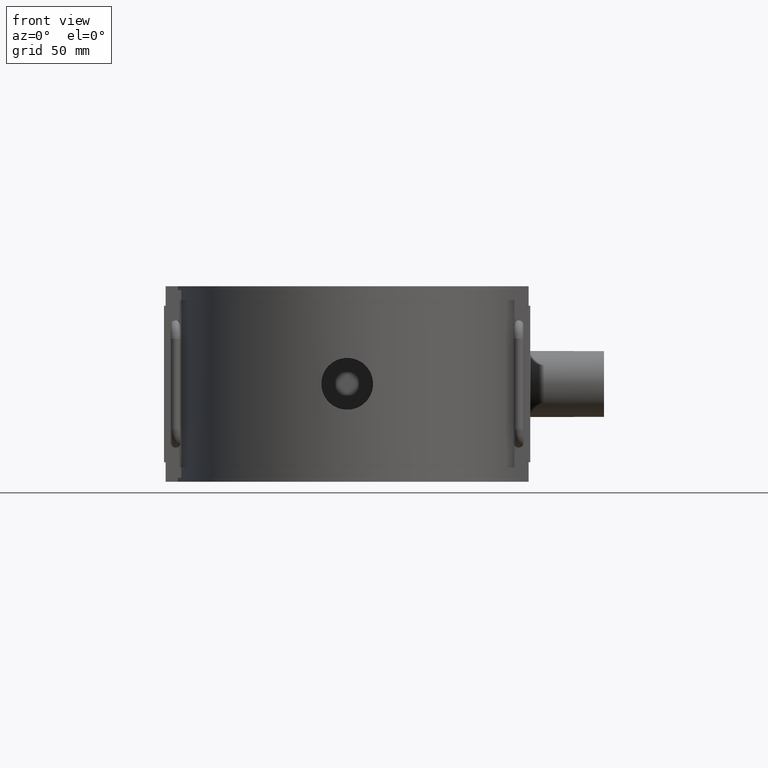
[diagram: clean part render]
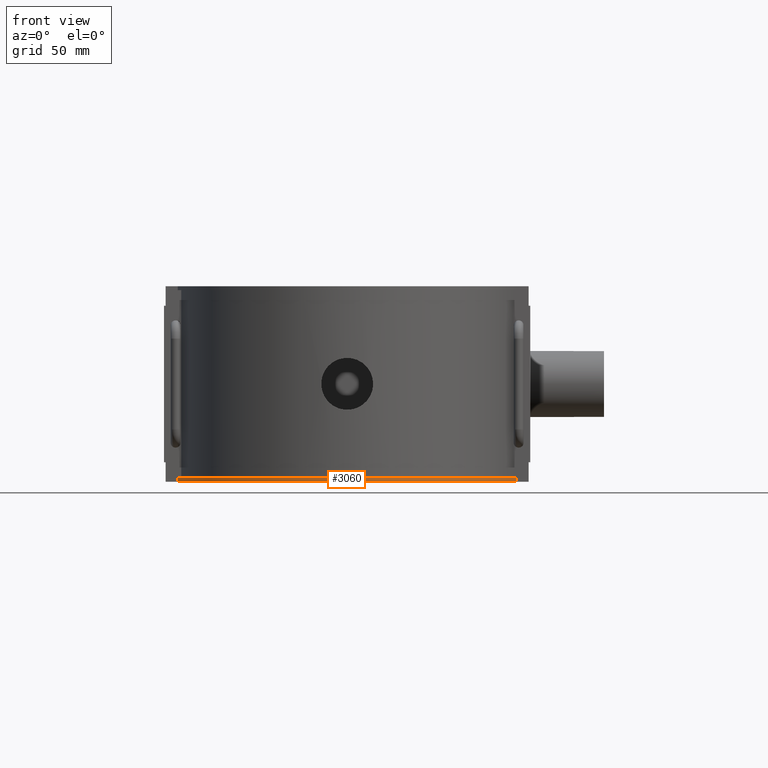
[diagram: same view with one face highlighted and labeled with its STEP entity id]
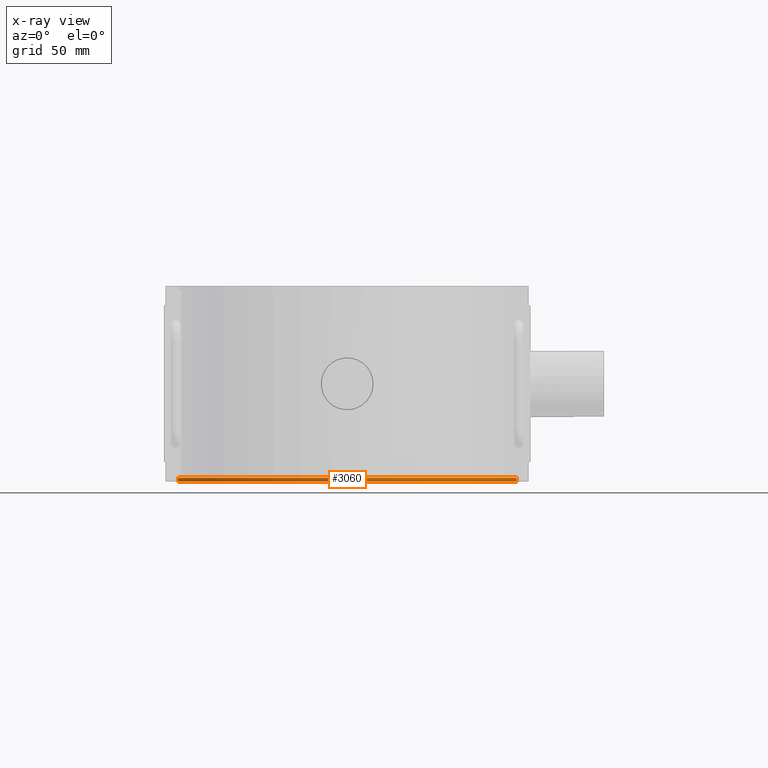
[diagram: x-ray of the same camera — body ghosted, the highlighted face saturated]
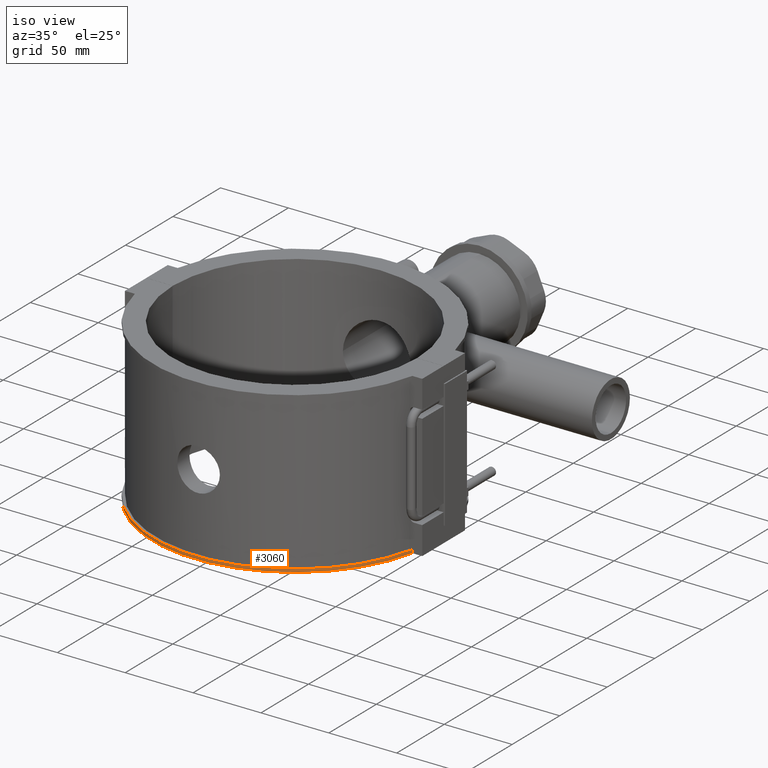
[diagram: same view with one face highlighted and labeled with its STEP entity id]
A machine part, front view. The second image highlights one B-rep face of the part: STEP entity #3060.
The next image is the same camera in x-ray: the body ghosted, the highlighted face saturated — about 0% of this face is hidden behind the body in this view.
A second angle (iso view) of the same face is appended — the face is thin or edge-on in the first view.
In plain terms, the highlighted cylindrical surface (partial cylindrical patch) has radius 104.652 mm, axis along (0, 0, -1).
Its self-contained STEP definition (entity closure, byte-faithful):
#100=LINE('',#5174,#379);
#101=LINE('',#5177,#380);
#379=VECTOR('',#3704,2.36);
#380=VECTOR('',#3707,2.36);
#743=CIRCLE('',#3277,104.652);
#744=CIRCLE('',#3278,104.652);
#913=FACE_OUTER_BOUND('',#1105,.T.);
#1105=EDGE_LOOP('',(#2280,#2281,#2282,#2283));
#1406=VERTEX_POINT('',#5170);
#1407=VERTEX_POINT('',#5171);
#1408=VERTEX_POINT('',#5173);
#1409=VERTEX_POINT('',#5175);
#1739=EDGE_CURVE('',#1406,#1407,#743,.T.);
#1740=EDGE_CURVE('',#1408,#1407,#100,.T.);
#1741=EDGE_CURVE('',#1408,#1409,#744,.T.);
#1742=EDGE_CURVE('',#1406,#1409,#101,.T.);
#2280=ORIENTED_EDGE('',*,*,#1739,.T.);
#2281=ORIENTED_EDGE('',*,*,#1740,.F.);
#2282=ORIENTED_EDGE('',*,*,#1741,.T.);
#2283=ORIENTED_EDGE('',*,*,#1742,.F.);
#2980=CYLINDRICAL_SURFACE('',#3276,104.652);
#3060=ADVANCED_FACE('',(#913),#2980,.T.);
#3276=AXIS2_PLACEMENT_3D('',#5169,#3700,#3701);
#3277=AXIS2_PLACEMENT_3D('',#5172,#3702,#3703);
#3278=AXIS2_PLACEMENT_3D('',#5176,#3705,#3706);
#3700=DIRECTION('center_axis',(0.,0.,-1.));
#3701=DIRECTION('ref_axis',(-0.976614427290077,-0.21499828001376,0.));
#3702=DIRECTION('center_axis',(0.,0.,1.));
#3703=DIRECTION('ref_axis',(-0.976614427290077,-0.21499828001376,0.));
#3704=DIRECTION('',(0.,0.,-1.));
#3705=DIRECTION('center_axis',(0.,0.,-1.));
#3706=DIRECTION('ref_axis',(-0.976614427290077,-0.21499828001376,0.));
#3707=DIRECTION('',(0.,0.,1.));
#5169=CARTESIAN_POINT('Origin',(0.,0.,-59.));
#5170=CARTESIAN_POINT('',(-102.204653044761,-22.5,-59.));
#5171=CARTESIAN_POINT('',(102.204653044761,-22.5,-59.));
#5172=CARTESIAN_POINT('Origin',(0.,0.,-59.));
#5173=CARTESIAN_POINT('',(102.204653044761,-22.5,-56.64));
#5174=CARTESIAN_POINT('',(102.204653044761,-22.5,-59.));
#5175=CARTESIAN_POINT('',(-102.204653044761,-22.5,-56.64));
#5176=CARTESIAN_POINT('Origin',(0.,0.,-56.64));
#5177=CARTESIAN_POINT('',(-102.204653044761,-22.5,-59.));